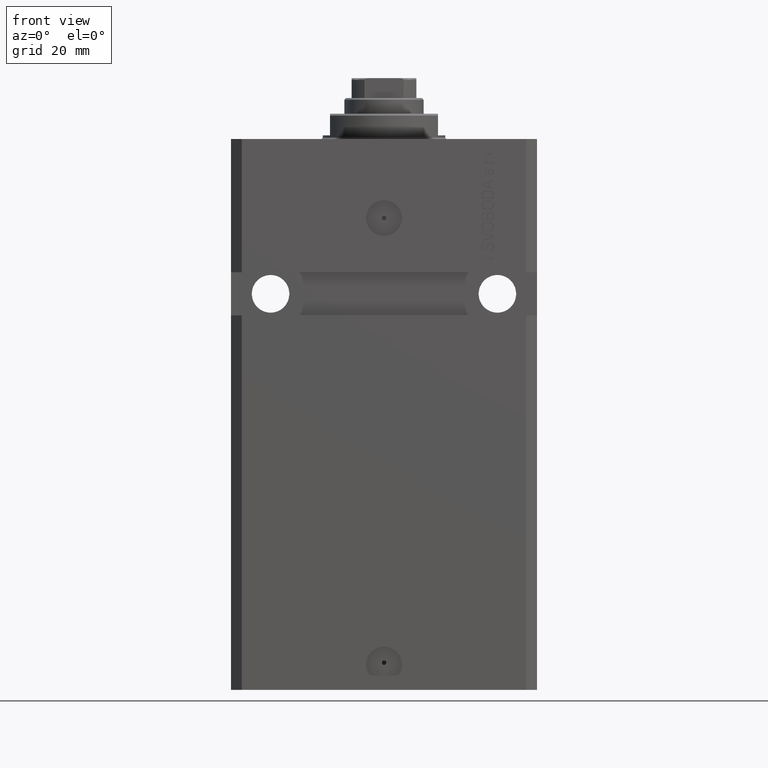
[diagram: clean part render]
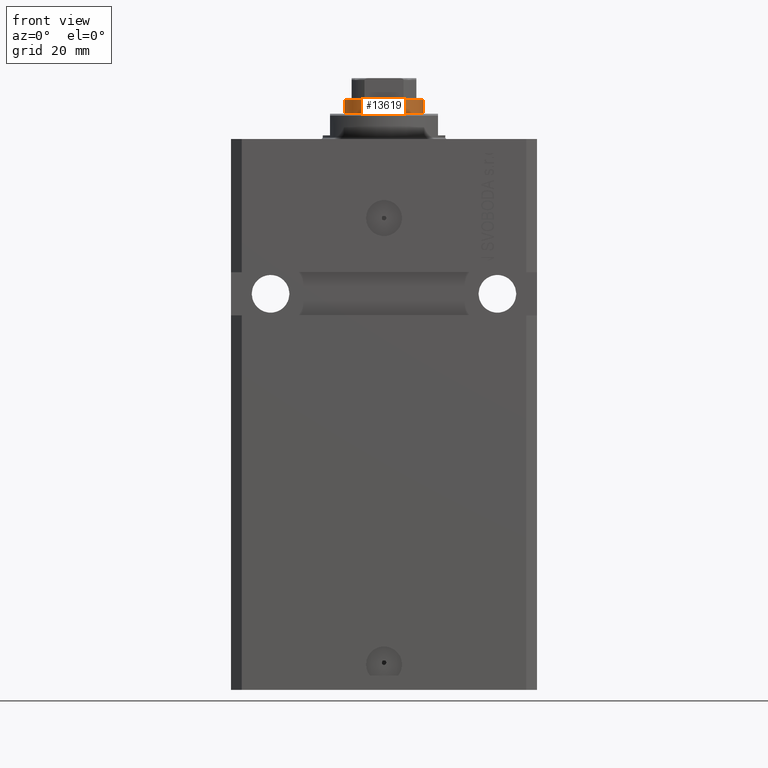
[diagram: same view with one face highlighted and labeled with its STEP entity id]
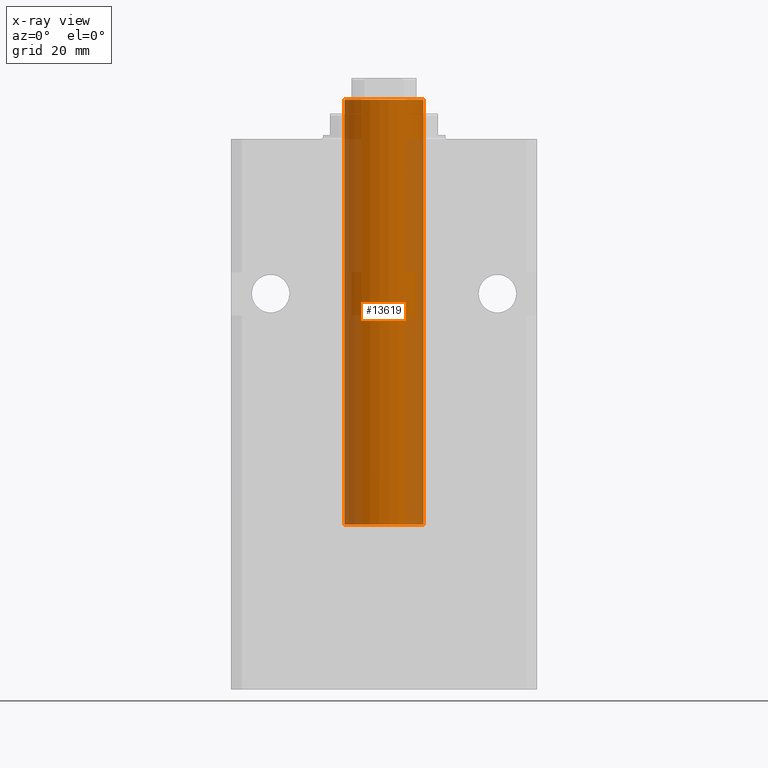
[diagram: x-ray of the same camera — body ghosted, the highlighted face saturated]
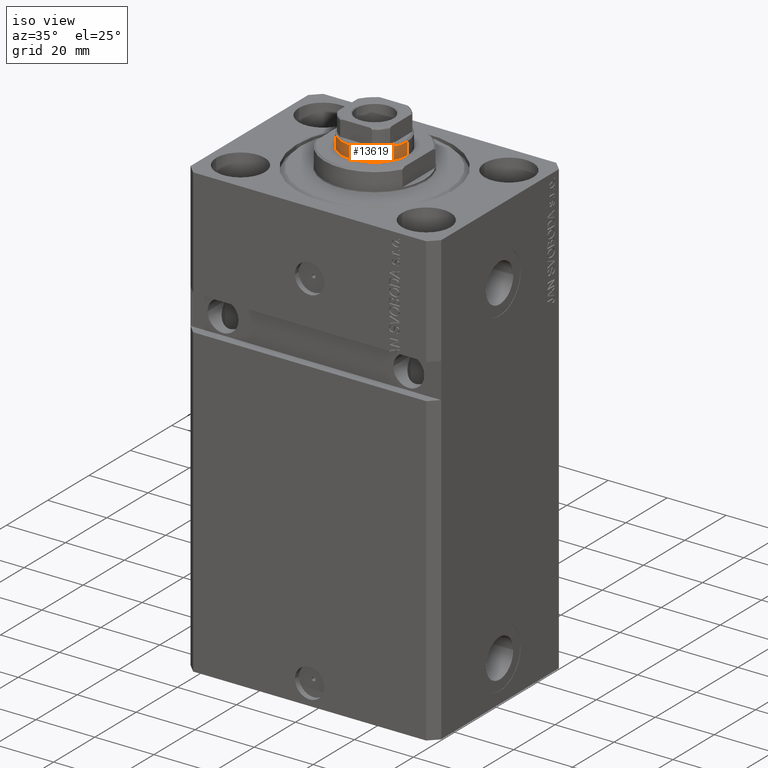
[diagram: same view with one face highlighted and labeled with its STEP entity id]
A machine part, front view. The second image highlights one B-rep face of the part: STEP entity #13619.
The next image is the same camera in x-ray: the body ghosted, the highlighted face saturated — about 36% of this face is hidden behind the body in this view.
A second angle (iso view) of the same face is appended — the face is thin or edge-on in the first view.
In plain terms, the highlighted cylindrical surface (partial cylindrical patch) has radius 11 mm, axis along (-0, -0, -1).
Its self-contained STEP definition (entity closure, byte-faithful):
#1080 = LINE ( 'NONE', #8619, #20241 ) ;
#1475 = CARTESIAN_POINT ( 'NONE',  ( 11.00000000000000000, 1.347111479062088405E-15, 34.50000000000000000 ) ) ;
#3351 = DIRECTION ( 'NONE',  ( 1.000000000000000000, 0.000000000000000000, 0.000000000000000000 ) ) ;
#3836 = CARTESIAN_POINT ( 'NONE',  ( 0.000000000000000000, 0.000000000000000000, 34.50000000000000000 ) ) ;
#4150 = CARTESIAN_POINT ( 'NONE',  ( -11.00000000000000000, 0.000000000000000000, 34.50000000000000000 ) ) ;
#4201 = AXIS2_PLACEMENT_3D ( 'NONE', #11665, #33555, #47934 ) ;
#7953 = DIRECTION ( 'NONE',  ( 0.000000000000000000, 0.000000000000000000, 1.000000000000000000 ) ) ;
#8619 = CARTESIAN_POINT ( 'NONE',  ( 11.00000000000000000, 1.347111479062088405E-15, 153.0000000000000000 ) ) ;
#8812 = FACE_OUTER_BOUND ( 'NONE', #43818, .T. ) ;
#8925 = EDGE_CURVE ( 'NONE', #11157, #23033, #23662, .T. ) ;
#11157 = VERTEX_POINT ( 'NONE', #38843 ) ;
#11665 = CARTESIAN_POINT ( 'NONE',  ( 0.000000000000000000, 0.000000000000000000, 152.5000000000000000 ) ) ;
#11965 = EDGE_CURVE ( 'NONE', #26534, #25908, #18950, .T. ) ;
#13619 = ADVANCED_FACE ( 'NONE', ( #8812 ), #15887, .T. ) ;
#15887 = CYLINDRICAL_SURFACE ( 'NONE', #47780, 11.00000000000000000 ) ;
#17039 = DIRECTION ( 'NONE',  ( -0.000000000000000000, -0.000000000000000000, -1.000000000000000000 ) ) ;
#18950 = CIRCLE ( 'NONE', #25923, 11.00000000000000000 ) ;
#20241 = VECTOR ( 'NONE', #40993, 1000.000000000000000 ) ;
#23033 = VERTEX_POINT ( 'NONE', #26858 ) ;
#23376 = ORIENTED_EDGE ( 'NONE', *, *, #38700, .T. ) ;
#23662 = CIRCLE ( 'NONE', #4201, 11.00000000000000000 ) ;
#25532 = ORIENTED_EDGE ( 'NONE', *, *, #8925, .T. ) ;
#25908 = VERTEX_POINT ( 'NONE', #1475 ) ;
#25923 = AXIS2_PLACEMENT_3D ( 'NONE', #3836, #7953, #3351 ) ;
#26534 = VERTEX_POINT ( 'NONE', #4150 ) ;
#26858 = CARTESIAN_POINT ( 'NONE',  ( -11.00000000000000000, 0.000000000000000000, 152.5000000000000000 ) ) ;
#28212 = CARTESIAN_POINT ( 'NONE',  ( -11.00000000000000000, 0.000000000000000000, 153.0000000000000000 ) ) ;
#30659 = ORIENTED_EDGE ( 'NONE', *, *, #11965, .T. ) ;
#31204 = DIRECTION ( 'NONE',  ( -0.000000000000000000, -0.000000000000000000, -1.000000000000000000 ) ) ;
#33555 = DIRECTION ( 'NONE',  ( 0.000000000000000000, 0.000000000000000000, -1.000000000000000000 ) ) ;
#34118 = CARTESIAN_POINT ( 'NONE',  ( 0.000000000000000000, 0.000000000000000000, 153.0000000000000000 ) ) ;
#35753 = LINE ( 'NONE', #28212, #43271 ) ;
#38700 = EDGE_CURVE ( 'NONE', #23033, #26534, #35753, .T. ) ;
#38843 = CARTESIAN_POINT ( 'NONE',  ( 11.00000000000000000, 1.347111479062088405E-15, 152.5000000000000000 ) ) ;
#40993 = DIRECTION ( 'NONE',  ( -0.000000000000000000, -0.000000000000000000, -1.000000000000000000 ) ) ;
#43271 = VECTOR ( 'NONE', #17039, 1000.000000000000000 ) ;
#43360 = ORIENTED_EDGE ( 'NONE', *, *, #47549, .F. ) ;
#43818 = EDGE_LOOP ( 'NONE', ( #43360, #25532, #23376, #30659 ) ) ;
#45564 = DIRECTION ( 'NONE',  ( -1.000000000000000000, 0.000000000000000000, 0.000000000000000000 ) ) ;
#47549 = EDGE_CURVE ( 'NONE', #11157, #25908, #1080, .T. ) ;
#47780 = AXIS2_PLACEMENT_3D ( 'NONE', #34118, #31204, #45564 ) ;
#47934 = DIRECTION ( 'NONE',  ( 1.000000000000000000, 0.000000000000000000, 0.000000000000000000 ) ) ;